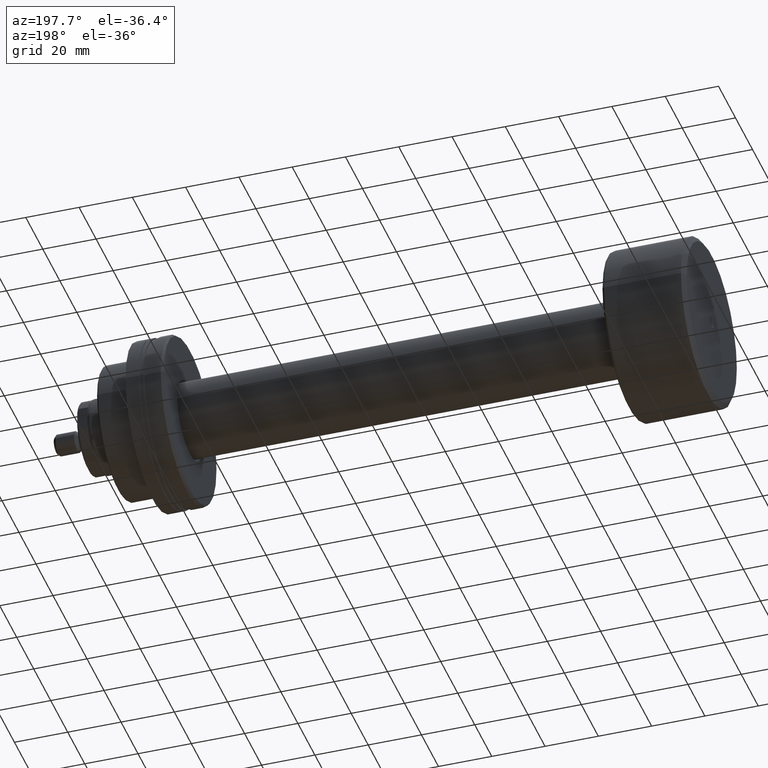
[diagram: clean part render]
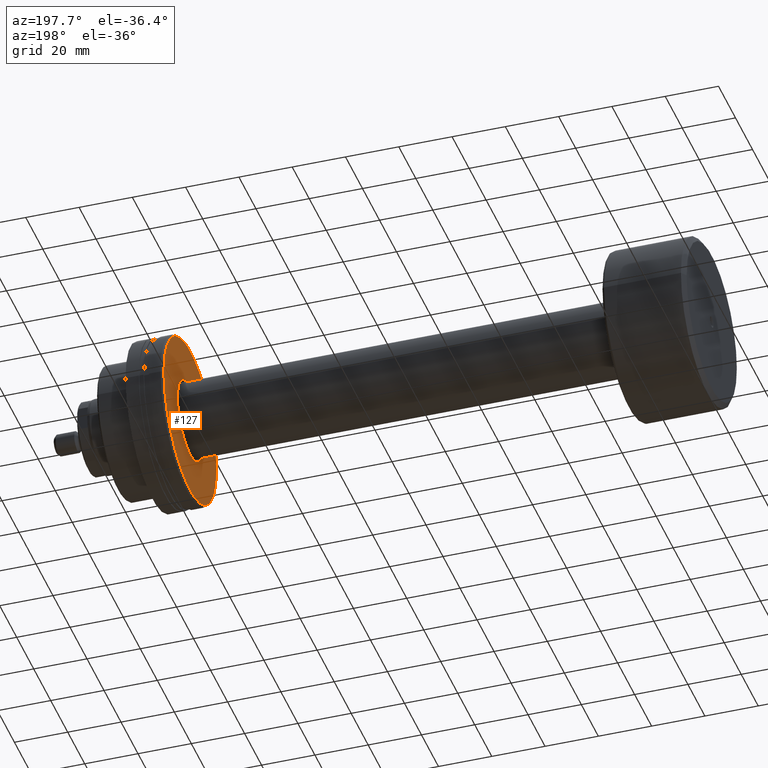
[diagram: same view with one face highlighted and labeled with its STEP entity id]
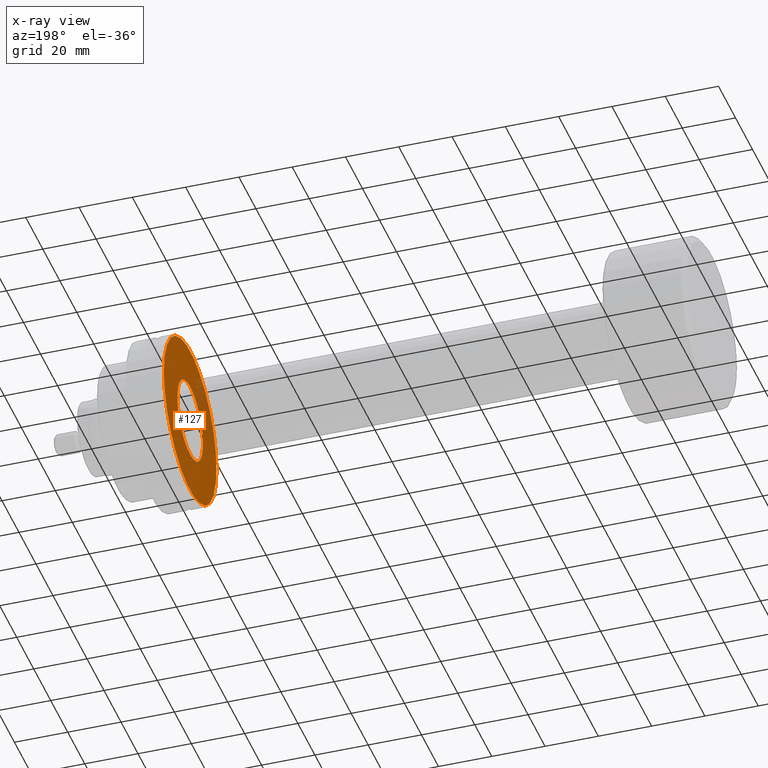
[diagram: x-ray of the same camera — body ghosted, the highlighted face saturated]
A machine part, auxiliary view. The second image highlights one B-rep face of the part: STEP entity #127.
The next image is the same camera in x-ray: the body ghosted, the highlighted face saturated — about 17% of this face is hidden behind the body in this view.
In plain terms, the highlighted planar face has unit normal (1, 0, 0).
Its self-contained STEP definition (entity closure, byte-faithful):
#3 = AXIS2_PLACEMENT_3D ( 'NONE', #952, #2450, #2636 ) ;
#127 = ADVANCED_FACE ( 'NONE', ( #976, #736 ), #1804, .F. ) ;
#135 = AXIS2_PLACEMENT_3D ( 'NONE', #1833, #1816, #773 ) ;
#145 = AXIS2_PLACEMENT_3D ( 'NONE', #1070, #944, #2218 ) ;
#220 = VERTEX_POINT ( 'NONE', #386 ) ;
#364 = EDGE_LOOP ( 'NONE', ( #1537, #2654 ) ) ;
#386 = CARTESIAN_POINT ( 'NONE',  ( -32.20000000000001705, 0.000000000000000000, 15.00000000000001776 ) ) ;
#403 = VERTEX_POINT ( 'NONE', #843 ) ;
#608 = EDGE_CURVE ( 'NONE', #403, #220, #1236, .T. ) ;
#663 = CARTESIAN_POINT ( 'NONE',  ( -32.19999999999999574, -30.92264973081047685, 3.822284909356672259E-15 ) ) ;
#736 = FACE_OUTER_BOUND ( 'NONE', #1410, .T. ) ;
#773 = DIRECTION ( 'NONE',  ( -2.019556722299304144E-15, 1.000000000000000000, 0.000000000000000000 ) ) ;
#798 = ORIENTED_EDGE ( 'NONE', *, *, #1150, .F. ) ;
#817 = CIRCLE ( 'NONE', #145, 15.00000000000004796 ) ;
#843 = CARTESIAN_POINT ( 'NONE',  ( -32.20000000000001705, 1.836970198721031955E-15, -15.00000000000001776 ) ) ;
#944 = DIRECTION ( 'NONE',  ( 1.000000000000000000, 1.931394410353556421E-15, -0.000000000000000000 ) ) ;
#952 = CARTESIAN_POINT ( 'NONE',  ( -32.20000000000001705, -3.708233295962696767E-15, 0.000000000000000000 ) ) ;
#976 = FACE_BOUND ( 'NONE', #364, .T. ) ;
#1052 = ORIENTED_EDGE ( 'NONE', *, *, #2081, .F. ) ;
#1070 = CARTESIAN_POINT ( 'NONE',  ( -32.20000000000001705, 0.000000000000000000, 0.000000000000000000 ) ) ;
#1130 = CARTESIAN_POINT ( 'NONE',  ( -32.20000000000011653, 30.92264973081046975, 0.000000000000000000 ) ) ;
#1150 = EDGE_CURVE ( 'NONE', #1497, #1546, #1825, .T. ) ;
#1236 = CIRCLE ( 'NONE', #1612, 15.00000000000004796 ) ;
#1368 = CARTESIAN_POINT ( 'NONE',  ( -32.20000000000005258, -3.708233295962754354E-15, 0.000000000000000000 ) ) ;
#1375 = DIRECTION ( 'NONE',  ( 1.000000000000000000, 1.931394410353556421E-15, -0.000000000000000000 ) ) ;
#1410 = EDGE_LOOP ( 'NONE', ( #1052, #798 ) ) ;
#1497 = VERTEX_POINT ( 'NONE', #663 ) ;
#1537 = ORIENTED_EDGE ( 'NONE', *, *, #2068, .T. ) ;
#1546 = VERTEX_POINT ( 'NONE', #1130 ) ;
#1612 = AXIS2_PLACEMENT_3D ( 'NONE', #2002, #1375, #1981 ) ;
#1654 = AXIS2_PLACEMENT_3D ( 'NONE', #1368, #2442, #2710 ) ;
#1804 = PLANE ( 'NONE',  #3 ) ;
#1816 = DIRECTION ( 'NONE',  ( 1.000000000000000000, 1.931394410353556421E-15, -0.000000000000000000 ) ) ;
#1825 = CIRCLE ( 'NONE', #1654, 30.92264973081047330 ) ;
#1833 = CARTESIAN_POINT ( 'NONE',  ( -32.20000000000005258, -3.708233295962754354E-15, 0.000000000000000000 ) ) ;
#1981 = DIRECTION ( 'NONE',  ( -1.850371707708588449E-15, 1.000000000000000000, 0.000000000000000000 ) ) ;
#2002 = CARTESIAN_POINT ( 'NONE',  ( -32.20000000000001705, 0.000000000000000000, 0.000000000000000000 ) ) ;
#2068 = EDGE_CURVE ( 'NONE', #220, #403, #817, .T. ) ;
#2081 = EDGE_CURVE ( 'NONE', #1546, #1497, #2253, .T. ) ;
#2218 = DIRECTION ( 'NONE',  ( -1.850371707708588449E-15, 1.000000000000000000, 0.000000000000000000 ) ) ;
#2253 = CIRCLE ( 'NONE', #135, 30.92264973081047330 ) ;
#2442 = DIRECTION ( 'NONE',  ( 1.000000000000000000, 1.931394410353556421E-15, -0.000000000000000000 ) ) ;
#2450 = DIRECTION ( 'NONE',  ( 1.000000000000000000, 1.931394410353556421E-15, -0.000000000000000000 ) ) ;
#2636 = DIRECTION ( 'NONE',  ( -1.931394410353556421E-15, 1.000000000000000000, 0.000000000000000000 ) ) ;
#2654 = ORIENTED_EDGE ( 'NONE', *, *, #608, .T. ) ;
#2710 = DIRECTION ( 'NONE',  ( -2.019556722299304144E-15, 1.000000000000000000, 0.000000000000000000 ) ) ;